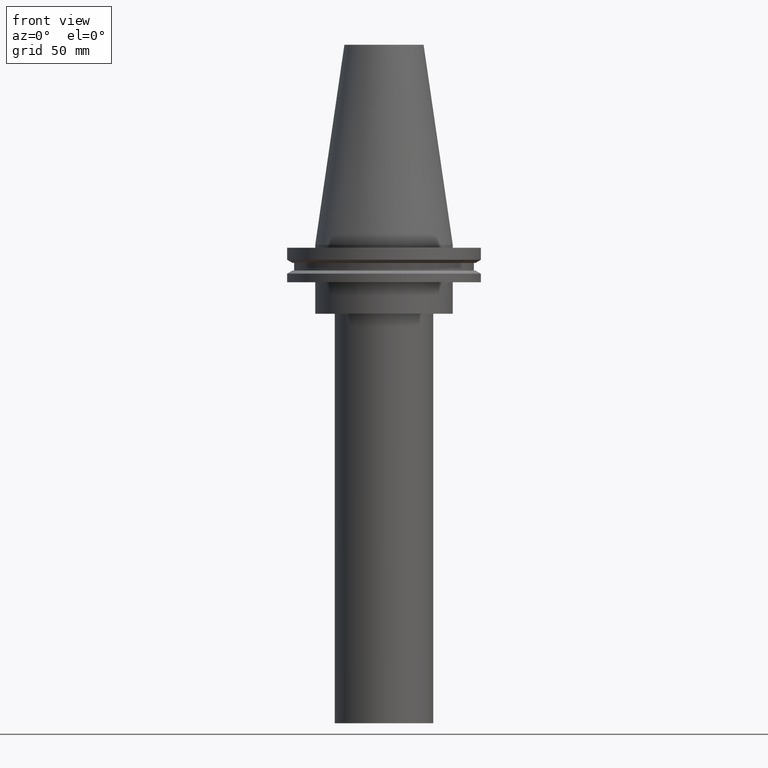
[diagram: clean part render]
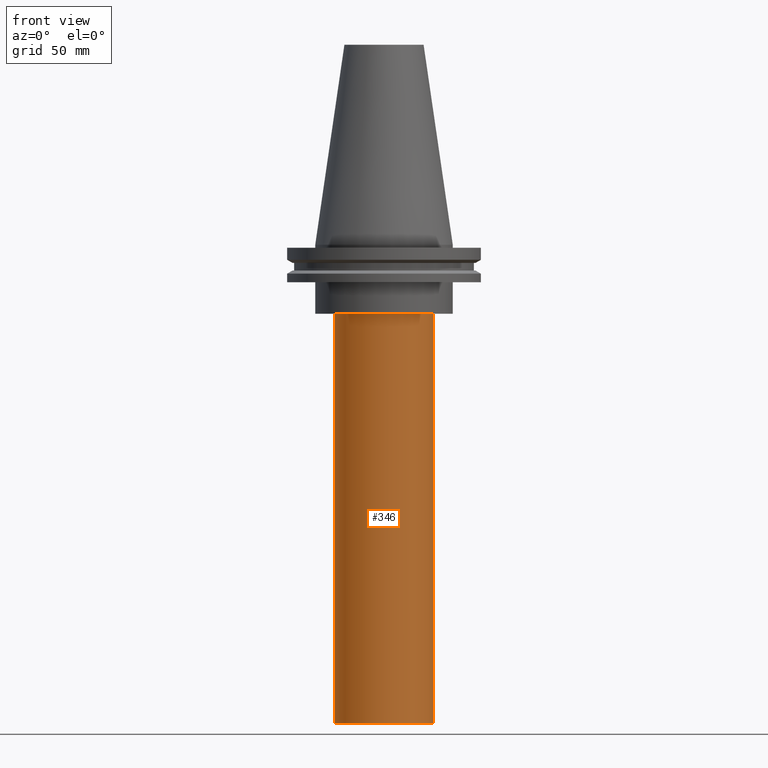
[diagram: same view with one face highlighted and labeled with its STEP entity id]
A machine part, front view. The second image highlights one B-rep face of the part: STEP entity #346.
In plain terms, the highlighted cylindrical surface (bore or boss wall) has radius 25 mm, axis along (-0, -0, 1).
Its self-contained STEP definition (entity closure, byte-faithful):
#35 = CARTESIAN_POINT ( 'NONE',  ( 25.00000000000000000, 0.000000000000000000, -35.00000000000000000 ) ) ;
#55 = DIRECTION ( 'NONE',  ( 1.000000000000000000, 0.000000000000000000, 0.000000000000000000 ) ) ;
#71 = ORIENTED_EDGE ( 'NONE', *, *, #104, .T. ) ;
#84 = CARTESIAN_POINT ( 'NONE',  ( 0.000000000000000000, 0.000000000000000000, -35.00000000000000000 ) ) ;
#104 = EDGE_CURVE ( 'NONE', #250, #250, #111, .T. ) ;
#111 = CIRCLE ( 'NONE', #350, 25.00000000000000000 ) ;
#120 = DIRECTION ( 'NONE',  ( 1.000000000000000000, 0.000000000000000000, 0.000000000000000000 ) ) ;
#140 = DIRECTION ( 'NONE',  ( -0.000000000000000000, -0.000000000000000000, 1.000000000000000000 ) ) ;
#165 = ORIENTED_EDGE ( 'NONE', *, *, #359, .F. ) ;
#188 = CIRCLE ( 'NONE', #233, 25.00000000000000000 ) ;
#200 = AXIS2_PLACEMENT_3D ( 'NONE', #304, #251, #120 ) ;
#214 = EDGE_LOOP ( 'NONE', ( #71 ) ) ;
#233 = AXIS2_PLACEMENT_3D ( 'NONE', #84, #392, #55 ) ;
#250 = VERTEX_POINT ( 'NONE', #362 ) ;
#251 = DIRECTION ( 'NONE',  ( -0.000000000000000000, -0.000000000000000000, 1.000000000000000000 ) ) ;
#265 = DIRECTION ( 'NONE',  ( 1.000000000000000000, 0.000000000000000000, 0.000000000000000000 ) ) ;
#272 = CYLINDRICAL_SURFACE ( 'NONE', #200, 25.00000000000000000 ) ;
#296 = FACE_OUTER_BOUND ( 'NONE', #214, .T. ) ;
#299 = FACE_OUTER_BOUND ( 'NONE', #307, .T. ) ;
#304 = CARTESIAN_POINT ( 'NONE',  ( 0.000000000000000000, 0.000000000000000000, 0.000000000000000000 ) ) ;
#307 = EDGE_LOOP ( 'NONE', ( #165 ) ) ;
#319 = CARTESIAN_POINT ( 'NONE',  ( 0.000000000000000000, 0.000000000000000000, -243.0000000000000000 ) ) ;
#337 = VERTEX_POINT ( 'NONE', #35 ) ;
#346 = ADVANCED_FACE ( 'NONE', ( #299, #296 ), #272, .T. ) ;
#350 = AXIS2_PLACEMENT_3D ( 'NONE', #319, #140, #265 ) ;
#359 = EDGE_CURVE ( 'NONE', #337, #337, #188, .T. ) ;
#362 = CARTESIAN_POINT ( 'NONE',  ( 25.00000000000000000, 0.000000000000000000, -243.0000000000000000 ) ) ;
#392 = DIRECTION ( 'NONE',  ( -0.000000000000000000, -0.000000000000000000, 1.000000000000000000 ) ) ;